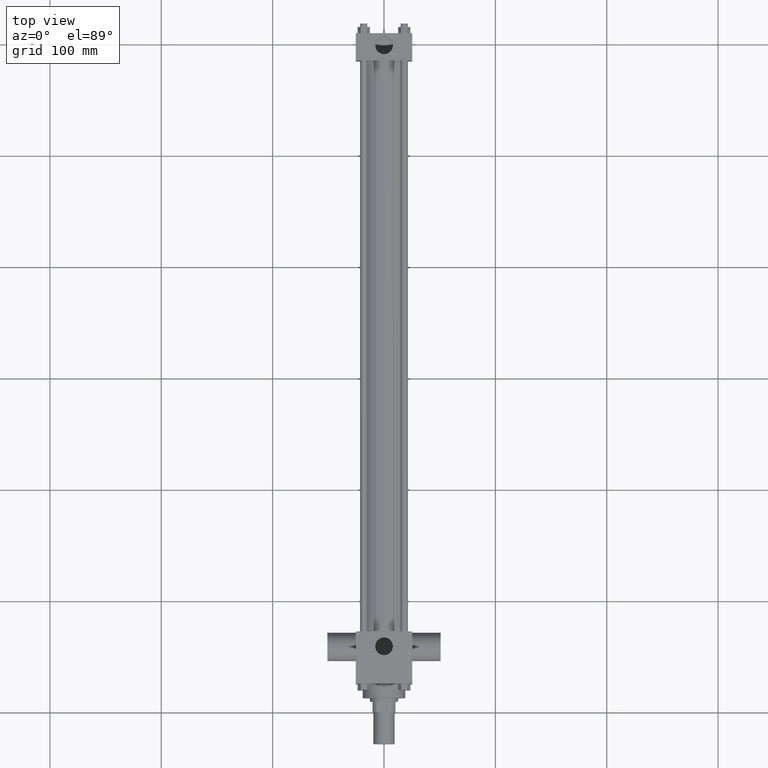
[diagram: clean part render]
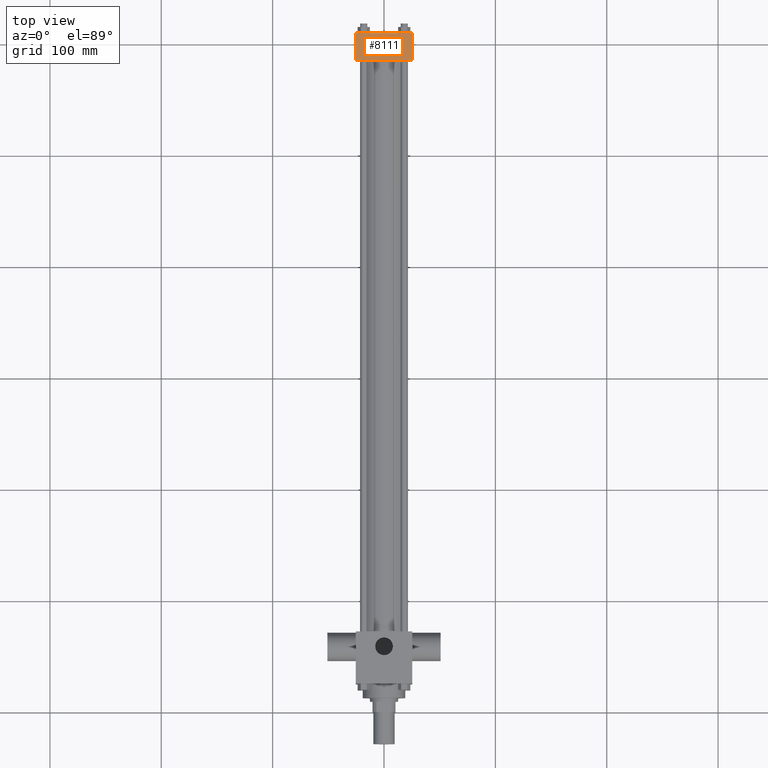
[diagram: same view with one face highlighted and labeled with its STEP entity id]
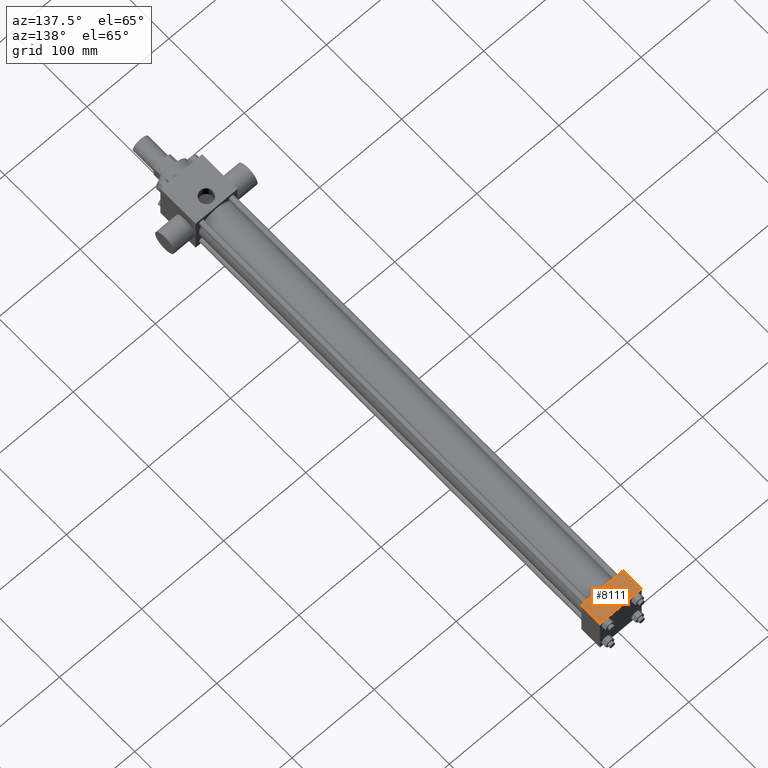
[diagram: same view with one face highlighted and labeled with its STEP entity id]
A machine part, top view. The second image highlights one B-rep face of the part: STEP entity #8111.
A second angle (auxiliary view) of the same face is appended — the face is thin or edge-on in the first view.
In plain terms, the highlighted planar face has unit normal (0, 0, 1).
Its self-contained STEP definition (entity closure, byte-faithful):
#4448=VERTEX_POINT('',#4449);
#4449=CARTESIAN_POINT('',(-2.540000000E+001,6.096000000E+002,2.540000000E+001));
#4450=EDGE_CURVE('',#4455,#4448,#4451,.T.);
#4451=LINE('',#4452,#4453);
#4452=CARTESIAN_POINT('',(2.540000000E+001,6.096000000E+002,2.540000000E+001));
#4453=VECTOR('',#4454,1.0E+000);
#4454=DIRECTION('',(-1.0E+000,0.0E+000,0.0E+000));
#4455=VERTEX_POINT('',#4456);
#4456=CARTESIAN_POINT('',(2.540000000E+001,6.096000000E+002,2.540000000E+001));
#4621=VERTEX_POINT('',#4622);
#4622=CARTESIAN_POINT('',(2.540000000E+001,5.849937500E+002,2.540000000E+001));
#4623=EDGE_CURVE('',#4621,#4628,#4624,.T.);
#4624=LINE('',#4625,#4626);
#4625=CARTESIAN_POINT('',(2.540000000E+001,5.849937500E+002,2.540000000E+001));
#4626=VECTOR('',#4627,1.0E+000);
#4627=DIRECTION('',(-1.0E+000,0.0E+000,0.0E+000));
#4628=VERTEX_POINT('',#4629);
#4629=CARTESIAN_POINT('',(-2.540000000E+001,5.849937500E+002,2.540000000E+001));
#4681=FACE_OUTER_BOUND('',#4683,.T.);
#4682=FACE_BOUND('',#4684,.T.);
#4683=EDGE_LOOP('',(#4685,#4686,#4687,#4688));
#4684=EDGE_LOOP('',(#4699));
#4685=ORIENTED_EDGE('',*,*,#4623,.F.);
#4686=ORIENTED_EDGE('',*,*,#4689,.F.);
#4687=ORIENTED_EDGE('',*,*,#4450,.T.);
#4688=ORIENTED_EDGE('',*,*,#4694,.T.);
#4689=EDGE_CURVE('',#4455,#4621,#4690,.T.);
#4690=LINE('',#4691,#4692);
#4691=CARTESIAN_POINT('',(2.540000000E+001,6.096000000E+002,2.540000000E+001));
#4692=VECTOR('',#4693,1.0E+000);
#4693=DIRECTION('',(0.0E+000,-1.0E+000,0.0E+000));
#4694=EDGE_CURVE('',#4448,#4628,#4695,.T.);
#4695=LINE('',#4696,#4697);
#4696=CARTESIAN_POINT('',(-2.540000000E+001,6.096000000E+002,2.540000000E+001));
#4697=VECTOR('',#4698,1.0E+000);
#4698=DIRECTION('',(0.0E+000,-1.0E+000,0.0E+000));
#4699=ORIENTED_EDGE('',*,*,#4700,.T.);
#4700=EDGE_CURVE('',#4706,#4706,#4701,.T.);
#4701=CIRCLE('',#4702,7.963027000E+000);
#4702=AXIS2_PLACEMENT_3D('',#4703,#4704,#4705);
#4703=CARTESIAN_POINT('',(0.000000000E+000,5.984875000E+002,2.540000000E+001));
#4704=DIRECTION('',(0.0E+000,0.0E+000,-1.0E+000));
#4705=DIRECTION('',(1.0E+000,0.0E+000,0.0E+000));
#4706=VERTEX_POINT('',#4707);
#4707=CARTESIAN_POINT('',(7.963027000E+000,5.984875000E+002,2.540000000E+001));
#4708=PLANE('',#4709);
#4709=AXIS2_PLACEMENT_3D('',#4710,#4711,#4712);
#4710=CARTESIAN_POINT('',(2.540000000E+001,6.096000000E+002,2.540000000E+001));
#4711=DIRECTION('',(0.0E+000,0.0E+000,1.0E+000));
#4712=DIRECTION('',(1.0E+000,0.0E+000,0.0E+000));
#8111=ADVANCED_FACE('',(#4681,#4682),#4708,.T.);